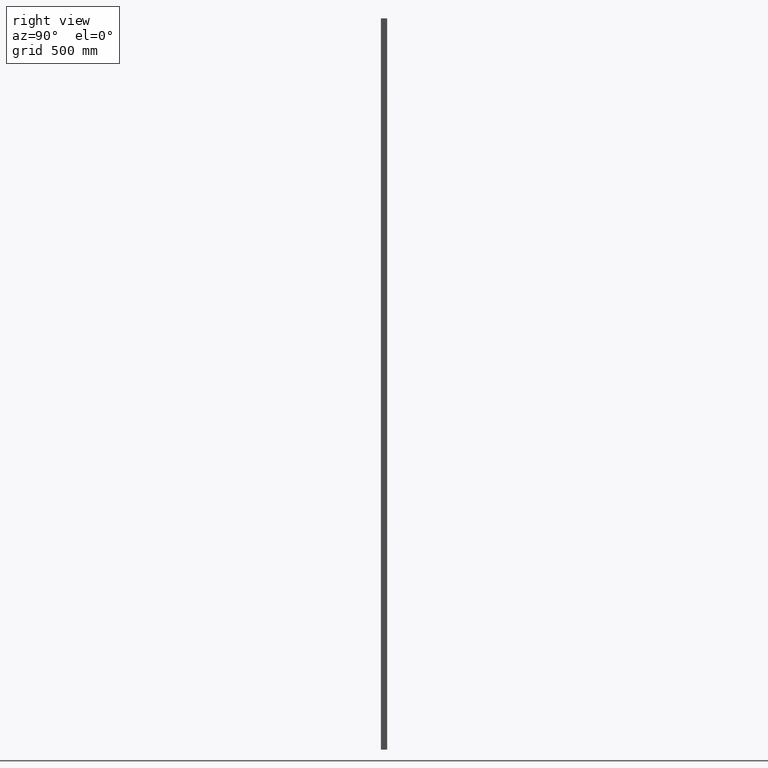
[diagram: clean part render]
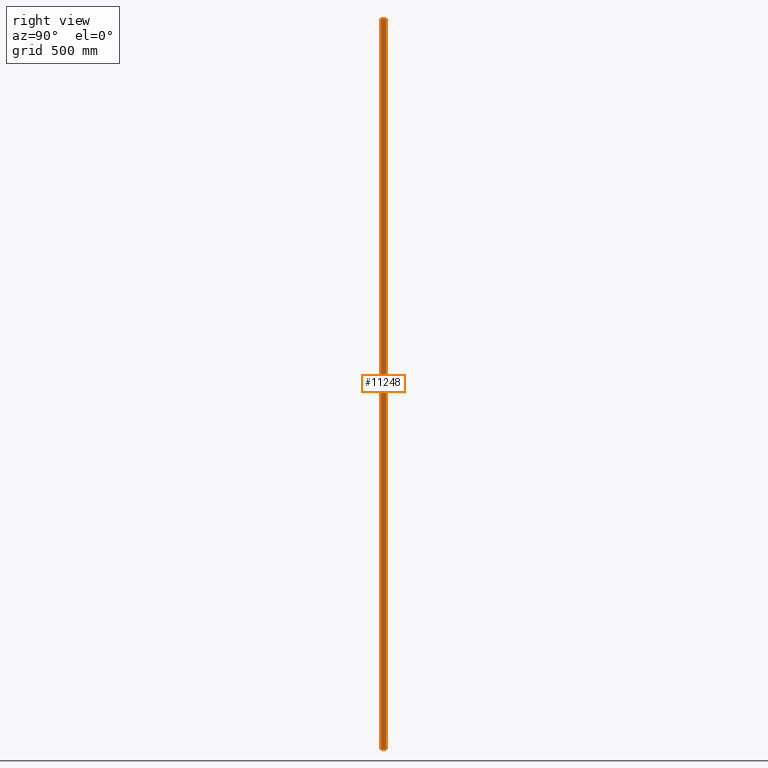
[diagram: same view with one face highlighted and labeled with its STEP entity id]
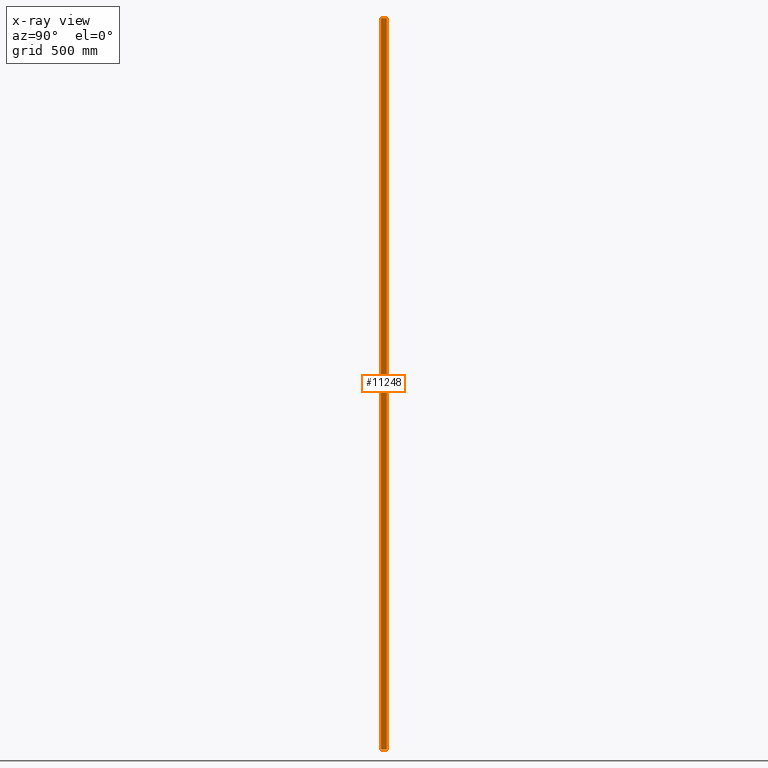
[diagram: x-ray of the same camera — body ghosted, the highlighted face saturated]
A machine part, right view. The second image highlights one B-rep face of the part: STEP entity #11248.
The next image is the same camera in x-ray: the body ghosted, the highlighted face saturated — about 0% of this face is hidden behind the body in this view.
In plain terms, the highlighted planar face has unit normal (1, 0, -0).
Its self-contained STEP definition (entity closure, byte-faithful):
#209 = ORIENTED_EDGE ( 'NONE', *, *, #11279, .T. ) ;
#482 = ORIENTED_EDGE ( 'NONE', *, *, #11806, .F. ) ;
#747 = LINE ( 'NONE', #1433, #7938 ) ;
#991 = CARTESIAN_POINT ( 'NONE',  ( 13.99999999999999467, 24.00000000000000355, -1500.000000000000000 ) ) ;
#1433 = CARTESIAN_POINT ( 'NONE',  ( 13.99999999999999645, 24.00000000000000355, -1500.000000000000000 ) ) ;
#1547 = EDGE_LOOP ( 'NONE', ( #482, #9330, #209, #6364 ) ) ;
#1558 = VERTEX_POINT ( 'NONE', #991 ) ;
#2356 = LINE ( 'NONE', #5253, #8162 ) ;
#2727 = EDGE_CURVE ( 'NONE', #4415, #1558, #2356, .T. ) ;
#2929 = CARTESIAN_POINT ( 'NONE',  ( 13.99999999999999645, 24.00000000000000355, 1500.000000000000000 ) ) ;
#3204 = VECTOR ( 'NONE', #8770, 1000.000000000000000 ) ;
#4103 = LINE ( 'NONE', #5499, #3204 ) ;
#4415 = VERTEX_POINT ( 'NONE', #14212 ) ;
#5253 = CARTESIAN_POINT ( 'NONE',  ( 13.99999999999999467, 24.00000000000000355, 1500.000000000000000 ) ) ;
#5363 = DIRECTION ( 'NONE',  ( -0.000000000000000000, -0.000000000000000000, -1.000000000000000000 ) ) ;
#5499 = CARTESIAN_POINT ( 'NONE',  ( 13.99999999999999645, 24.00000000000000355, 1500.000000000000000 ) ) ;
#5905 = DIRECTION ( 'NONE',  ( 1.476360405086644309E-16, -1.000000000000000000, 0.000000000000000000 ) ) ;
#6364 = ORIENTED_EDGE ( 'NONE', *, *, #10606, .T. ) ;
#6516 = CARTESIAN_POINT ( 'NONE',  ( 14.00000000000000000, 0.5000000000000033307, 1500.000000000000000 ) ) ;
#7685 = AXIS2_PLACEMENT_3D ( 'NONE', #2929, #14064, #14278 ) ;
#7938 = VECTOR ( 'NONE', #5905, 1000.000000000000000 ) ;
#8162 = VECTOR ( 'NONE', #5363, 1000.000000000000000 ) ;
#8770 = DIRECTION ( 'NONE',  ( 1.476360405086644309E-16, -1.000000000000000000, 0.000000000000000000 ) ) ;
#9171 = FACE_OUTER_BOUND ( 'NONE', #1547, .T. ) ;
#9330 = ORIENTED_EDGE ( 'NONE', *, *, #2727, .F. ) ;
#9645 = PLANE ( 'NONE',  #7685 ) ;
#10606 = EDGE_CURVE ( 'NONE', #14302, #11257, #14096, .T. ) ;
#11109 = VECTOR ( 'NONE', #11146, 1000.000000000000000 ) ;
#11146 = DIRECTION ( 'NONE',  ( -0.000000000000000000, -0.000000000000000000, -1.000000000000000000 ) ) ;
#11248 = ADVANCED_FACE ( 'NONE', ( #9171 ), #9645, .T. ) ;
#11257 = VERTEX_POINT ( 'NONE', #13333 ) ;
#11279 = EDGE_CURVE ( 'NONE', #4415, #14302, #4103, .T. ) ;
#11806 = EDGE_CURVE ( 'NONE', #1558, #11257, #747, .T. ) ;
#13333 = CARTESIAN_POINT ( 'NONE',  ( 14.00000000000000000, 0.5000000000000033307, -1500.000000000000000 ) ) ;
#14064 = DIRECTION ( 'NONE',  ( 1.000000000000000000, 1.476360405086644309E-16, -0.000000000000000000 ) ) ;
#14096 = LINE ( 'NONE', #14400, #11109 ) ;
#14212 = CARTESIAN_POINT ( 'NONE',  ( 13.99999999999999467, 24.00000000000000355, 1500.000000000000000 ) ) ;
#14278 = DIRECTION ( 'NONE',  ( -1.476360405086644309E-16, 1.000000000000000000, 0.000000000000000000 ) ) ;
#14302 = VERTEX_POINT ( 'NONE', #6516 ) ;
#14400 = CARTESIAN_POINT ( 'NONE',  ( 14.00000000000000000, 0.5000000000000033307, 1500.000000000000000 ) ) ;